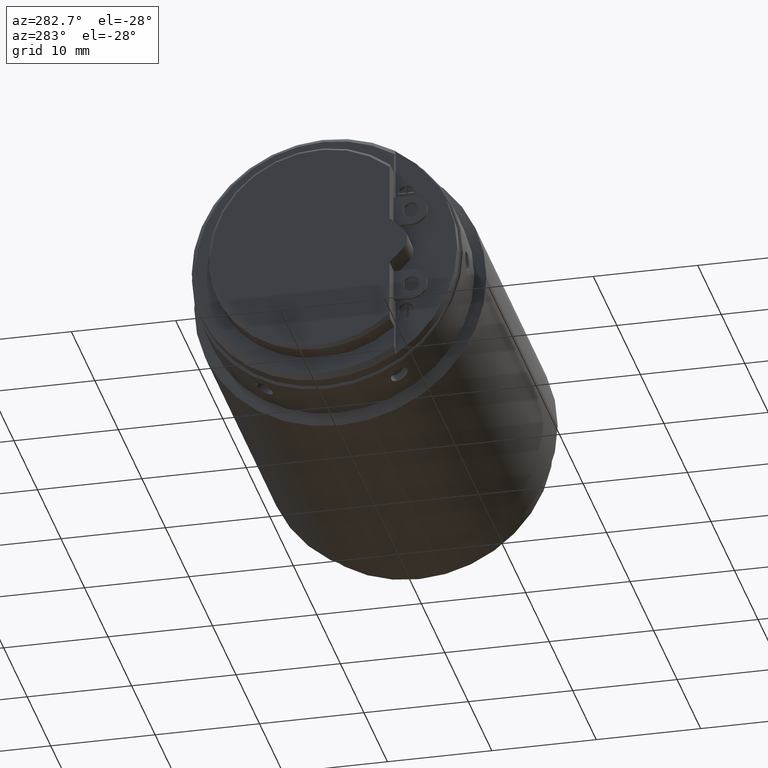
[diagram: clean part render]
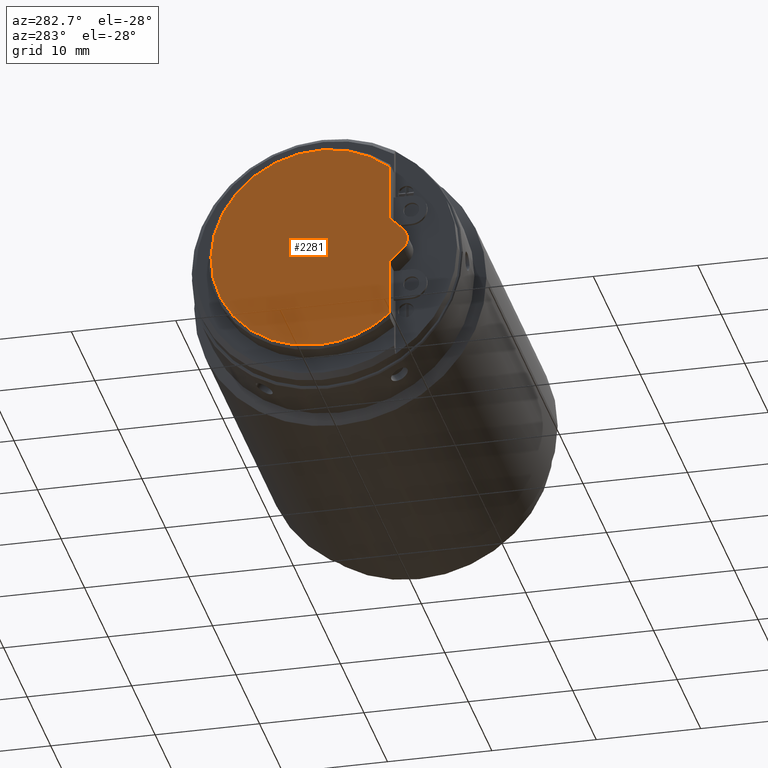
[diagram: same view with one face highlighted and labeled with its STEP entity id]
A machine part, auxiliary view. The second image highlights one B-rep face of the part: STEP entity #2281.
In plain terms, the highlighted planar face has unit normal (1, 0, 0).
Its self-contained STEP definition (entity closure, byte-faithful):
#20=CARTESIAN_POINT('',(-3.699998276960E0,-6.799997440532E0,7.736274939519E0));
#50=CARTESIAN_POINT('',(-3.699999569240E0,-6.799996587377E0,-7.736273968895E0));
#135=CARTESIAN_POINT('',(-3.7E0,-2.168948985628E-14,1.776356839400E-14));
#136=DIRECTION('',(1.E0,0.E0,0.E0));
#137=DIRECTION('',(0.E0,-6.601941747573E-1,-7.510949684404E-1));
#138=AXIS2_PLACEMENT_3D('',#135,#136,#137);
#140=CARTESIAN_POINT('',(-3.7E0,-2.168948985628E-14,1.776356839400E-14));
#141=DIRECTION('',(1.E0,0.E0,0.E0));
#142=DIRECTION('',(0.E0,0.E0,-1.E0));
#143=AXIS2_PLACEMENT_3D('',#140,#141,#142);
#145=DIRECTION('',(-3.182001761327E-7,-4.464072778645E-7,-9.999999999998E-1));
#146=VECTOR('',#145,5.414954595960E0);
#147=CARTESIAN_POINT('',(-3.699998276960E0,-6.799997440532E0,7.736274939519E0));
#148=LINE('',#147,#146);
#149=DIRECTION('',(0.E0,-7.071068210646E-1,-7.071067413085E-1));
#150=VECTOR('',#149,1.782842813020E0);
#151=CARTESIAN_POINT('',(-3.7E0,-6.799999857807E0,2.321320343560E0));
#152=LINE('',#151,#150);
#153=CARTESIAN_POINT('',(-3.7E0,-7.E0,0.E0));
#154=DIRECTION('',(1.E0,0.E0,0.E0));
#155=DIRECTION('',(0.E0,-7.071067811865E-1,7.071067811865E-1));
#156=AXIS2_PLACEMENT_3D('',#153,#154,#155);
#158=DIRECTION('',(1.208069741748E-7,7.071067811865E-1,-7.071067811866E-1));
#159=VECTOR('',#158,1.782842712475E0);
#160=CARTESIAN_POINT('',(-3.7E0,-8.060660171780E0,-1.060660171780E0));
#161=LINE('',#160,#159);
#162=DIRECTION('',(3.977500086245E-8,6.302219515595E-7,-9.999999999998E-1));
#163=VECTOR('',#162,5.414953625336E0);
#164=CARTESIAN_POINT('',(-3.699999784620E0,-6.8E0,-2.321320343560E0));
#165=LINE('',#164,#163);
#1971=VERTEX_POINT('',#50);
#1973=CARTESIAN_POINT('',(-3.699999784620E0,-6.8E0,-2.321320343560E0));
#1974=VERTEX_POINT('',#1973);
#2003=VERTEX_POINT('',#20);
#2012=CARTESIAN_POINT('',(-3.7E0,-6.799999857807E0,2.321320343560E0));
#2013=VERTEX_POINT('',#2012);
#2014=CARTESIAN_POINT('',(-3.7E0,-1.776356839400E-14,-1.029999224632E1));
#2015=VERTEX_POINT('',#2014);
#2016=CARTESIAN_POINT('',(-3.7E0,-8.060660171780E0,1.060660171780E0));
#2017=VERTEX_POINT('',#2016);
#2018=CARTESIAN_POINT('',(-3.7E0,-8.060660171780E0,-1.060660171780E0));
#2019=VERTEX_POINT('',#2018);
#2264=CARTESIAN_POINT('',(-3.7E0,9.025917295261E-1,1.614908136636E-3));
#2265=DIRECTION('',(1.E0,0.E0,0.E0));
#2266=DIRECTION('',(0.E0,1.E0,0.E0));
#2267=AXIS2_PLACEMENT_3D('',#2264,#2265,#2266);
#2268=PLANE('',#2267);
#2269=ORIENTED_EDGE('',*,*,#2161,.T.);
#2270=ORIENTED_EDGE('',*,*,#2159,.T.);
#2271=ORIENTED_EDGE('',*,*,#2135,.T.);
#2273=ORIENTED_EDGE('',*,*,#2272,.T.);
#2275=ORIENTED_EDGE('',*,*,#2274,.T.);
#2277=ORIENTED_EDGE('',*,*,#2276,.T.);
#2278=ORIENTED_EDGE('',*,*,#2239,.T.);
#2279=EDGE_LOOP('',(#2269,#2270,#2271,#2273,#2275,#2277,#2278));
#2280=FACE_OUTER_BOUND('',#2279,.F.);
#2281=ADVANCED_FACE('',(#2280),#2268,.F.);
#139=CIRCLE('',#138,1.029999224632E1);
#144=CIRCLE('',#143,1.029999224632E1);
#157=CIRCLE('',#156,1.5E0);
#2135=EDGE_CURVE('',#2003,#2013,#148,.T.);
#2159=EDGE_CURVE('',#2015,#2003,#144,.T.);
#2161=EDGE_CURVE('',#1971,#2015,#139,.T.);
#2239=EDGE_CURVE('',#1974,#1971,#165,.T.);
#2272=EDGE_CURVE('',#2013,#2017,#152,.T.);
#2274=EDGE_CURVE('',#2017,#2019,#157,.T.);
#2276=EDGE_CURVE('',#2019,#1974,#161,.T.);